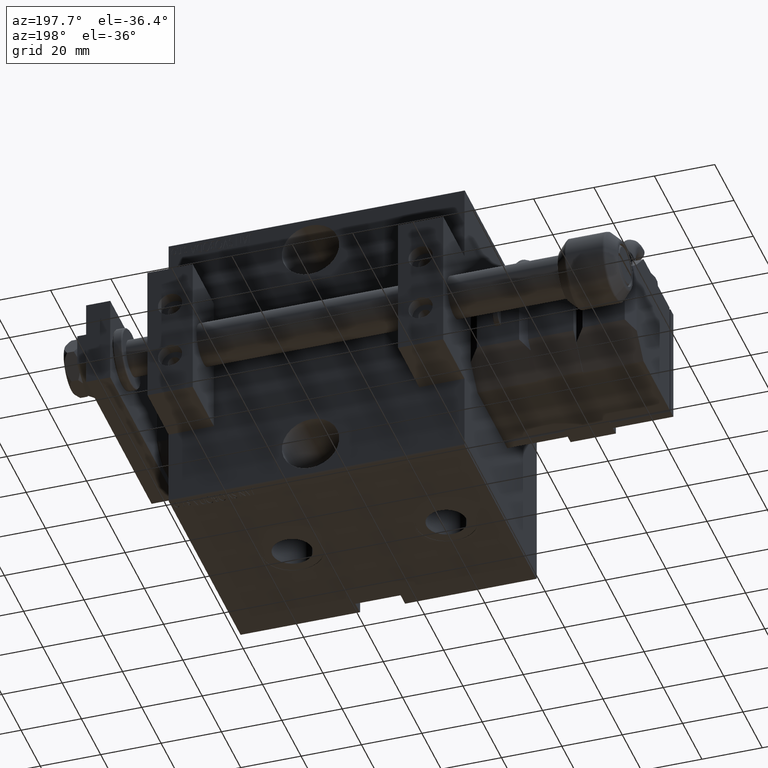
[diagram: clean part render]
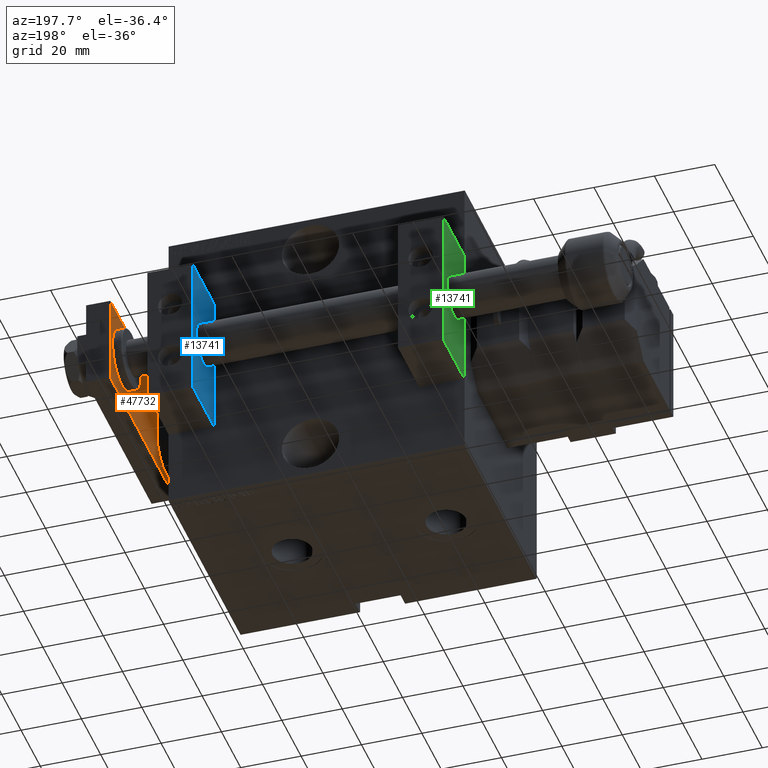
[diagram: same view with three faces highlighted in distinct colors, each labeled with its STEP entity id]
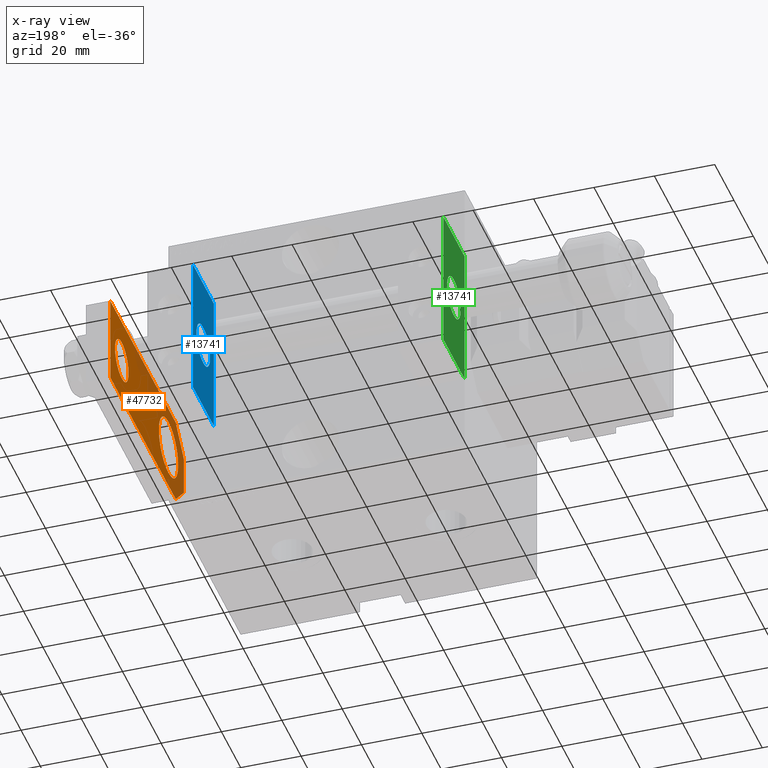
[diagram: x-ray of the same camera — body ghosted, the three highlighted faces saturated]
A machine part, auxiliary view with three faces highlighted in distinct colors.
The next image is the same camera in x-ray (body ghosted, the three faces saturated) — at least one of them is partly hidden behind the body in this view.
Their STEP definitions:

[orange] entity #47732 — the highlighted planar face has unit normal (1, 0, -0).
#680 = VECTOR ( 'NONE', #33649, 1000.000000000000000 ) ;
#1820 = CARTESIAN_POINT ( 'NONE',  ( -10.00000000000000178, 16.00000000000000000, 0.000000000000000000 ) ) ;
#2184 = CARTESIAN_POINT ( 'NONE',  ( 0.000000000000000000, 16.00000000000000000, 0.000000000000000000 ) ) ;
#3003 = EDGE_LOOP ( 'NONE', ( #7077, #37258 ) ) ;
#3396 = CARTESIAN_POINT ( 'NONE',  ( -6.500000000000007105, 9.629649721936179265E-32, 0.000000000000000000 ) ) ;
#3755 = DIRECTION ( 'NONE',  ( 1.000000000000000000, 0.000000000000000000, 0.000000000000000000 ) ) ;
#4492 = VERTEX_POINT ( 'NONE', #33468 ) ;
#5740 = CARTESIAN_POINT ( 'NONE',  ( 0.000000000000000000, 0.000000000000000000, 0.000000000000000000 ) ) ;
#6026 = EDGE_CURVE ( 'NONE', #15664, #44251, #18765, .T. ) ;
#6919 = VERTEX_POINT ( 'NONE', #1820 ) ;
#7077 = ORIENTED_EDGE ( 'NONE', *, *, #11913, .T. ) ;
#7306 = DIRECTION ( 'NONE',  ( -0.7071067811865489050, -0.7071067811865461294, -0.000000000000000000 ) ) ;
#7358 = ORIENTED_EDGE ( 'NONE', *, *, #19371, .F. ) ;
#7373 = AXIS2_PLACEMENT_3D ( 'NONE', #21988, #22700, #11404 ) ;
#7665 = DIRECTION ( 'NONE',  ( -6.802837160693361638E-17, 1.000000000000000000, 0.000000000000000000 ) ) ;
#8007 = ORIENTED_EDGE ( 'NONE', *, *, #41459, .F. ) ;
#8695 = FACE_OUTER_BOUND ( 'NONE', #11963, .T. ) ;
#9284 = VERTEX_POINT ( 'NONE', #3396 ) ;
#9706 = ORIENTED_EDGE ( 'NONE', *, *, #30671, .T. ) ;
#10441 = EDGE_CURVE ( 'NONE', #9284, #44251, #28400, .T. ) ;
#10788 = CARTESIAN_POINT ( 'NONE',  ( -15.00000000000000711, 8.500000000000021316, 0.000000000000000000 ) ) ;
#11404 = DIRECTION ( 'NONE',  ( 1.000000000000000000, 0.000000000000000000, 0.000000000000000000 ) ) ;
#11594 = CARTESIAN_POINT ( 'NONE',  ( -15.00000000000000888, 9.629649721936179265E-32, 0.000000000000000000 ) ) ;
#11913 = EDGE_CURVE ( 'NONE', #6919, #30052, #30337, .T. ) ;
#11963 = EDGE_LOOP ( 'NONE', ( #8007, #21754, #38188, #7358, #22488, #39759 ) ) ;
#12137 = VECTOR ( 'NONE', #27103, 1000.000000000000000 ) ;
#12315 = VECTOR ( 'NONE', #14154, 1000.000000000000000 ) ;
#12627 = PLANE ( 'NONE',  #48099 ) ;
#14040 = EDGE_CURVE ( 'NONE', #4492, #45444, #22041, .T. ) ;
#14154 = DIRECTION ( 'NONE',  ( -0.7071067811865465735, 0.7071067811865484609, -0.000000000000000000 ) ) ;
#15197 = CIRCLE ( 'NONE', #30860, 7.000000000000002665 ) ;
#15664 = VERTEX_POINT ( 'NONE', #45597 ) ;
#15751 = EDGE_CURVE ( 'NONE', #30052, #6919, #31299, .T. ) ;
#16312 = VECTOR ( 'NONE', #7306, 1000.000000000000114 ) ;
#16360 = CARTESIAN_POINT ( 'NONE',  ( 7.000000000000002665, 64.50000000000000000, 0.000000000000000000 ) ) ;
#16407 = AXIS2_PLACEMENT_3D ( 'NONE', #2184, #24522, #28206 ) ;
#18765 = LINE ( 'NONE', #23426, #12137 ) ;
#18858 = CARTESIAN_POINT ( 'NONE',  ( 0.000000000000000000, 16.00000000000000000, 0.000000000000000000 ) ) ;
#19371 = EDGE_CURVE ( 'NONE', #29506, #15664, #34137, .T. ) ;
#21754 = ORIENTED_EDGE ( 'NONE', *, *, #10441, .T. ) ;
#21988 = CARTESIAN_POINT ( 'NONE',  ( 1.963948872468190046E-17, 64.50000000000000000, 0.000000000000000000 ) ) ;
#22041 = LINE ( 'NONE', #36998, #16312 ) ;
#22488 = ORIENTED_EDGE ( 'NONE', *, *, #39834, .F. ) ;
#22700 = DIRECTION ( 'NONE',  ( 0.000000000000000000, 0.000000000000000000, 1.000000000000000000 ) ) ;
#23115 = CARTESIAN_POINT ( 'NONE',  ( 10.00000000000000178, 16.00000000000000000, 0.000000000000000000 ) ) ;
#23426 = CARTESIAN_POINT ( 'NONE',  ( -14.99999999999999822, 76.50000000000000000, 0.000000000000000000 ) ) ;
#23667 = FACE_BOUND ( 'NONE', #3003, .T. ) ;
#23793 = LINE ( 'NONE', #48400, #34719 ) ;
#24522 = DIRECTION ( 'NONE',  ( 0.000000000000000000, 0.000000000000000000, 1.000000000000000000 ) ) ;
#25194 = CARTESIAN_POINT ( 'NONE',  ( 1.963948872468190046E-17, 64.50000000000000000, 0.000000000000000000 ) ) ;
#25462 = CARTESIAN_POINT ( 'NONE',  ( 6.499999999999972466, 9.629649721936179265E-32, 0.000000000000000000 ) ) ;
#27103 = DIRECTION ( 'NONE',  ( -1.360567432138672328E-16, -1.000000000000000000, 0.000000000000000000 ) ) ;
#27838 = FACE_BOUND ( 'NONE', #30059, .T. ) ;
#28111 = ORIENTED_EDGE ( 'NONE', *, *, #30580, .T. ) ;
#28206 = DIRECTION ( 'NONE',  ( 1.000000000000000000, 0.000000000000000000, 0.000000000000000000 ) ) ;
#28400 = LINE ( 'NONE', #35760, #12315 ) ;
#28616 = CARTESIAN_POINT ( 'NONE',  ( 15.00000000000000355, 76.50000000000000000, 0.000000000000000000 ) ) ;
#29506 = VERTEX_POINT ( 'NONE', #28616 ) ;
#30052 = VERTEX_POINT ( 'NONE', #23115 ) ;
#30059 = EDGE_LOOP ( 'NONE', ( #9706, #28111 ) ) ;
#30337 = CIRCLE ( 'NONE', #35037, 10.00000000000000178 ) ;
#30580 = EDGE_CURVE ( 'NONE', #47300, #40019, #15197, .T. ) ;
#30671 = EDGE_CURVE ( 'NONE', #40019, #47300, #32450, .T. ) ;
#30860 = AXIS2_PLACEMENT_3D ( 'NONE', #25194, #32062, #36469 ) ;
#31299 = CIRCLE ( 'NONE', #16407, 10.00000000000000178 ) ;
#32062 = DIRECTION ( 'NONE',  ( 0.000000000000000000, 0.000000000000000000, 1.000000000000000000 ) ) ;
#32450 = CIRCLE ( 'NONE', #7373, 7.000000000000002665 ) ;
#33468 = CARTESIAN_POINT ( 'NONE',  ( 15.00000000000000888, 8.500000000000000000, 0.000000000000000000 ) ) ;
#33649 = DIRECTION ( 'NONE',  ( -1.000000000000000000, 0.000000000000000000, 0.000000000000000000 ) ) ;
#33882 = CARTESIAN_POINT ( 'NONE',  ( 15.00000000000000355, 76.50000000000000000, 0.000000000000000000 ) ) ;
#34137 = LINE ( 'NONE', #33882, #680 ) ;
#34719 = VECTOR ( 'NONE', #7665, 1000.000000000000000 ) ;
#34986 = DIRECTION ( 'NONE',  ( 0.000000000000000000, 0.000000000000000000, 1.000000000000000000 ) ) ;
#35037 = AXIS2_PLACEMENT_3D ( 'NONE', #18858, #34986, #48543 ) ;
#35760 = CARTESIAN_POINT ( 'NONE',  ( -6.500000000000007105, 9.629649721936179265E-32, 0.000000000000000000 ) ) ;
#36469 = DIRECTION ( 'NONE',  ( 1.000000000000000000, 0.000000000000000000, 0.000000000000000000 ) ) ;
#36998 = CARTESIAN_POINT ( 'NONE',  ( 15.00000000000000888, 8.500000000000000000, 0.000000000000000000 ) ) ;
#37140 = VECTOR ( 'NONE', #3755, 1000.000000000000000 ) ;
#37258 = ORIENTED_EDGE ( 'NONE', *, *, #15751, .T. ) ;
#37600 = LINE ( 'NONE', #11594, #37140 ) ;
#38188 = ORIENTED_EDGE ( 'NONE', *, *, #6026, .F. ) ;
#38623 = DIRECTION ( 'NONE',  ( -0.000000000000000000, 0.000000000000000000, 1.000000000000000000 ) ) ;
#39759 = ORIENTED_EDGE ( 'NONE', *, *, #14040, .T. ) ;
#39834 = EDGE_CURVE ( 'NONE', #4492, #29506, #23793, .T. ) ;
#40019 = VERTEX_POINT ( 'NONE', #41146 ) ;
#41146 = CARTESIAN_POINT ( 'NONE',  ( -7.000000000000002665, 64.50000000000000000, 0.000000000000000000 ) ) ;
#41459 = EDGE_CURVE ( 'NONE', #9284, #45444, #37600, .T. ) ;
#42781 = DIRECTION ( 'NONE',  ( 1.000000000000000000, 0.000000000000000000, 0.000000000000000000 ) ) ;
#44251 = VERTEX_POINT ( 'NONE', #10788 ) ;
#45444 = VERTEX_POINT ( 'NONE', #25462 ) ;
#45597 = CARTESIAN_POINT ( 'NONE',  ( -14.99999999999999822, 76.50000000000000000, 0.000000000000000000 ) ) ;
#47300 = VERTEX_POINT ( 'NONE', #16360 ) ;
#47732 = ADVANCED_FACE ( 'NONE', ( #8695, #27838, #23667 ), #12627, .F. ) ;
#48099 = AXIS2_PLACEMENT_3D ( 'NONE', #5740, #38623, #42781 ) ;
#48400 = CARTESIAN_POINT ( 'NONE',  ( 15.00000000000000888, 9.629649721936179265E-32, 0.000000000000000000 ) ) ;
#48543 = DIRECTION ( 'NONE',  ( 1.000000000000000000, 0.000000000000000000, 0.000000000000000000 ) ) ;

[blue] entity #13741 — the highlighted planar face has unit normal (-1, 0, 0).
#196 = VERTEX_POINT ( 'NONE', #624 ) ;
#624 = CARTESIAN_POINT ( 'NONE',  ( 0.000000000000000000, -11.00000000000000000, 24.00000000000000355 ) ) ;
#2799 = CARTESIAN_POINT ( 'NONE',  ( 0.000000000000000000, 3.469446951953614189E-15, 7.000000000000000000 ) ) ;
#4270 = CARTESIAN_POINT ( 'NONE',  ( 0.000000000000000000, 11.00000000000000355, -23.99999999999999289 ) ) ;
#5448 = CARTESIAN_POINT ( 'NONE',  ( 0.000000000000000000, 11.00000000000000355, -23.99999999999999289 ) ) ;
#5620 = EDGE_CURVE ( 'NONE', #38169, #47655, #48152, .T. ) ;
#6952 = VERTEX_POINT ( 'NONE', #12635 ) ;
#7837 = PLANE ( 'NONE',  #46090 ) ;
#8564 = DIRECTION ( 'NONE',  ( 0.000000000000000000, -1.000000000000000000, -1.577021341797097314E-16 ) ) ;
#9301 = VECTOR ( 'NONE', #14414, 1000.000000000000000 ) ;
#10738 = LINE ( 'NONE', #14658, #9301 ) ;
#10828 = ORIENTED_EDGE ( 'NONE', *, *, #5620, .T. ) ;
#12053 = VECTOR ( 'NONE', #35133, 1000.000000000000000 ) ;
#12251 = LINE ( 'NONE', #27219, #26644 ) ;
#12502 = FACE_OUTER_BOUND ( 'NONE', #31865, .T. ) ;
#12635 = CARTESIAN_POINT ( 'NONE',  ( 0.000000000000000000, 4.326699711356761015E-15, -7.000000000000000000 ) ) ;
#13741 = ADVANCED_FACE ( 'NONE', ( #41440, #12502 ), #7837, .T. ) ;
#14163 = DIRECTION ( 'NONE',  ( -1.000000000000000000, 0.000000000000000000, -0.000000000000000000 ) ) ;
#14414 = DIRECTION ( 'NONE',  ( 0.000000000000000000, 0.000000000000000000, -1.000000000000000000 ) ) ;
#14500 = ORIENTED_EDGE ( 'NONE', *, *, #31985, .F. ) ;
#14658 = CARTESIAN_POINT ( 'NONE',  ( 0.000000000000000000, -11.00000000000000000, 24.00000000000000355 ) ) ;
#14771 = EDGE_CURVE ( 'NONE', #196, #35592, #10738, .T. ) ;
#17908 = EDGE_CURVE ( 'NONE', #6952, #30872, #25763, .T. ) ;
#19172 = ORIENTED_EDGE ( 'NONE', *, *, #30950, .T. ) ;
#19431 = LINE ( 'NONE', #5448, #12053 ) ;
#21253 = DIRECTION ( 'NONE',  ( -1.000000000000000000, 0.000000000000000000, -0.000000000000000000 ) ) ;
#22490 = DIRECTION ( 'NONE',  ( 0.000000000000000000, 0.000000000000000000, 1.000000000000000000 ) ) ;
#23797 = EDGE_CURVE ( 'NONE', #30872, #6952, #25267, .T. ) ;
#25232 = ORIENTED_EDGE ( 'NONE', *, *, #14771, .F. ) ;
#25267 = CIRCLE ( 'NONE', #26818, 7.000000000000000000 ) ;
#25763 = CIRCLE ( 'NONE', #32031, 7.000000000000000000 ) ;
#26303 = CARTESIAN_POINT ( 'NONE',  ( 0.000000000000000000, 11.00000000000000355, 24.00000000000000711 ) ) ;
#26644 = VECTOR ( 'NONE', #8564, 1000.000000000000000 ) ;
#26818 = AXIS2_PLACEMENT_3D ( 'NONE', #36209, #21253, #42827 ) ;
#26976 = DIRECTION ( 'NONE',  ( -1.000000000000000000, 0.000000000000000000, -0.000000000000000000 ) ) ;
#27219 = CARTESIAN_POINT ( 'NONE',  ( 0.000000000000000000, 11.00000000000000355, 24.00000000000000711 ) ) ;
#30872 = VERTEX_POINT ( 'NONE', #2799 ) ;
#30950 = EDGE_CURVE ( 'NONE', #47655, #35592, #19431, .T. ) ;
#31217 = CARTESIAN_POINT ( 'NONE',  ( 0.000000000000000000, -11.00000000000000000, -24.00000000000000000 ) ) ;
#31865 = EDGE_LOOP ( 'NONE', ( #25232, #14500, #10828, #19172 ) ) ;
#31985 = EDGE_CURVE ( 'NONE', #38169, #196, #12251, .T. ) ;
#32031 = AXIS2_PLACEMENT_3D ( 'NONE', #43845, #14163, #22490 ) ;
#34724 = ORIENTED_EDGE ( 'NONE', *, *, #23797, .F. ) ;
#35133 = DIRECTION ( 'NONE',  ( 0.000000000000000000, -1.000000000000000000, -3.154042683594194627E-16 ) ) ;
#35592 = VERTEX_POINT ( 'NONE', #31217 ) ;
#36209 = CARTESIAN_POINT ( 'NONE',  ( 0.000000000000000000, 3.469446951953614189E-15, 0.000000000000000000 ) ) ;
#36876 = DIRECTION ( 'NONE',  ( 0.000000000000000000, 0.000000000000000000, -1.000000000000000000 ) ) ;
#37763 = CARTESIAN_POINT ( 'NONE',  ( 0.000000000000000000, 0.000000000000000000, 0.000000000000000000 ) ) ;
#38169 = VERTEX_POINT ( 'NONE', #41114 ) ;
#38664 = EDGE_LOOP ( 'NONE', ( #34724, #44093 ) ) ;
#41114 = CARTESIAN_POINT ( 'NONE',  ( 0.000000000000000000, 11.00000000000000355, 24.00000000000000711 ) ) ;
#41116 = VECTOR ( 'NONE', #36876, 1000.000000000000000 ) ;
#41440 = FACE_BOUND ( 'NONE', #38664, .T. ) ;
#42827 = DIRECTION ( 'NONE',  ( 0.000000000000000000, 0.000000000000000000, 1.000000000000000000 ) ) ;
#43845 = CARTESIAN_POINT ( 'NONE',  ( 0.000000000000000000, 3.469446951953614189E-15, 0.000000000000000000 ) ) ;
#44093 = ORIENTED_EDGE ( 'NONE', *, *, #17908, .F. ) ;
#46088 = DIRECTION ( 'NONE',  ( -0.000000000000000000, 0.000000000000000000, 1.000000000000000000 ) ) ;
#46090 = AXIS2_PLACEMENT_3D ( 'NONE', #37763, #26976, #46088 ) ;
#47655 = VERTEX_POINT ( 'NONE', #4270 ) ;
#48152 = LINE ( 'NONE', #26303, #41116 ) ;

[green] entity #13741 — the highlighted planar face has unit normal (-1, 0, 0).
#196 = VERTEX_POINT ( 'NONE', #624 ) ;
#624 = CARTESIAN_POINT ( 'NONE',  ( 0.000000000000000000, -11.00000000000000000, 24.00000000000000355 ) ) ;
#2799 = CARTESIAN_POINT ( 'NONE',  ( 0.000000000000000000, 3.469446951953614189E-15, 7.000000000000000000 ) ) ;
#4270 = CARTESIAN_POINT ( 'NONE',  ( 0.000000000000000000, 11.00000000000000355, -23.99999999999999289 ) ) ;
#5448 = CARTESIAN_POINT ( 'NONE',  ( 0.000000000000000000, 11.00000000000000355, -23.99999999999999289 ) ) ;
#5620 = EDGE_CURVE ( 'NONE', #38169, #47655, #48152, .T. ) ;
#6952 = VERTEX_POINT ( 'NONE', #12635 ) ;
#7837 = PLANE ( 'NONE',  #46090 ) ;
#8564 = DIRECTION ( 'NONE',  ( 0.000000000000000000, -1.000000000000000000, -1.577021341797097314E-16 ) ) ;
#9301 = VECTOR ( 'NONE', #14414, 1000.000000000000000 ) ;
#10738 = LINE ( 'NONE', #14658, #9301 ) ;
#10828 = ORIENTED_EDGE ( 'NONE', *, *, #5620, .T. ) ;
#12053 = VECTOR ( 'NONE', #35133, 1000.000000000000000 ) ;
#12251 = LINE ( 'NONE', #27219, #26644 ) ;
#12502 = FACE_OUTER_BOUND ( 'NONE', #31865, .T. ) ;
#12635 = CARTESIAN_POINT ( 'NONE',  ( 0.000000000000000000, 4.326699711356761015E-15, -7.000000000000000000 ) ) ;
#13741 = ADVANCED_FACE ( 'NONE', ( #41440, #12502 ), #7837, .T. ) ;
#14163 = DIRECTION ( 'NONE',  ( -1.000000000000000000, 0.000000000000000000, -0.000000000000000000 ) ) ;
#14414 = DIRECTION ( 'NONE',  ( 0.000000000000000000, 0.000000000000000000, -1.000000000000000000 ) ) ;
#14500 = ORIENTED_EDGE ( 'NONE', *, *, #31985, .F. ) ;
#14658 = CARTESIAN_POINT ( 'NONE',  ( 0.000000000000000000, -11.00000000000000000, 24.00000000000000355 ) ) ;
#14771 = EDGE_CURVE ( 'NONE', #196, #35592, #10738, .T. ) ;
#17908 = EDGE_CURVE ( 'NONE', #6952, #30872, #25763, .T. ) ;
#19172 = ORIENTED_EDGE ( 'NONE', *, *, #30950, .T. ) ;
#19431 = LINE ( 'NONE', #5448, #12053 ) ;
#21253 = DIRECTION ( 'NONE',  ( -1.000000000000000000, 0.000000000000000000, -0.000000000000000000 ) ) ;
#22490 = DIRECTION ( 'NONE',  ( 0.000000000000000000, 0.000000000000000000, 1.000000000000000000 ) ) ;
#23797 = EDGE_CURVE ( 'NONE', #30872, #6952, #25267, .T. ) ;
#25232 = ORIENTED_EDGE ( 'NONE', *, *, #14771, .F. ) ;
#25267 = CIRCLE ( 'NONE', #26818, 7.000000000000000000 ) ;
#25763 = CIRCLE ( 'NONE', #32031, 7.000000000000000000 ) ;
#26303 = CARTESIAN_POINT ( 'NONE',  ( 0.000000000000000000, 11.00000000000000355, 24.00000000000000711 ) ) ;
#26644 = VECTOR ( 'NONE', #8564, 1000.000000000000000 ) ;
#26818 = AXIS2_PLACEMENT_3D ( 'NONE', #36209, #21253, #42827 ) ;
#26976 = DIRECTION ( 'NONE',  ( -1.000000000000000000, 0.000000000000000000, -0.000000000000000000 ) ) ;
#27219 = CARTESIAN_POINT ( 'NONE',  ( 0.000000000000000000, 11.00000000000000355, 24.00000000000000711 ) ) ;
#30872 = VERTEX_POINT ( 'NONE', #2799 ) ;
#30950 = EDGE_CURVE ( 'NONE', #47655, #35592, #19431, .T. ) ;
#31217 = CARTESIAN_POINT ( 'NONE',  ( 0.000000000000000000, -11.00000000000000000, -24.00000000000000000 ) ) ;
#31865 = EDGE_LOOP ( 'NONE', ( #25232, #14500, #10828, #19172 ) ) ;
#31985 = EDGE_CURVE ( 'NONE', #38169, #196, #12251, .T. ) ;
#32031 = AXIS2_PLACEMENT_3D ( 'NONE', #43845, #14163, #22490 ) ;
#34724 = ORIENTED_EDGE ( 'NONE', *, *, #23797, .F. ) ;
#35133 = DIRECTION ( 'NONE',  ( 0.000000000000000000, -1.000000000000000000, -3.154042683594194627E-16 ) ) ;
#35592 = VERTEX_POINT ( 'NONE', #31217 ) ;
#36209 = CARTESIAN_POINT ( 'NONE',  ( 0.000000000000000000, 3.469446951953614189E-15, 0.000000000000000000 ) ) ;
#36876 = DIRECTION ( 'NONE',  ( 0.000000000000000000, 0.000000000000000000, -1.000000000000000000 ) ) ;
#37763 = CARTESIAN_POINT ( 'NONE',  ( 0.000000000000000000, 0.000000000000000000, 0.000000000000000000 ) ) ;
#38169 = VERTEX_POINT ( 'NONE', #41114 ) ;
#38664 = EDGE_LOOP ( 'NONE', ( #34724, #44093 ) ) ;
#41114 = CARTESIAN_POINT ( 'NONE',  ( 0.000000000000000000, 11.00000000000000355, 24.00000000000000711 ) ) ;
#41116 = VECTOR ( 'NONE', #36876, 1000.000000000000000 ) ;
#41440 = FACE_BOUND ( 'NONE', #38664, .T. ) ;
#42827 = DIRECTION ( 'NONE',  ( 0.000000000000000000, 0.000000000000000000, 1.000000000000000000 ) ) ;
#43845 = CARTESIAN_POINT ( 'NONE',  ( 0.000000000000000000, 3.469446951953614189E-15, 0.000000000000000000 ) ) ;
#44093 = ORIENTED_EDGE ( 'NONE', *, *, #17908, .F. ) ;
#46088 = DIRECTION ( 'NONE',  ( -0.000000000000000000, 0.000000000000000000, 1.000000000000000000 ) ) ;
#46090 = AXIS2_PLACEMENT_3D ( 'NONE', #37763, #26976, #46088 ) ;
#47655 = VERTEX_POINT ( 'NONE', #4270 ) ;
#48152 = LINE ( 'NONE', #26303, #41116 ) ;